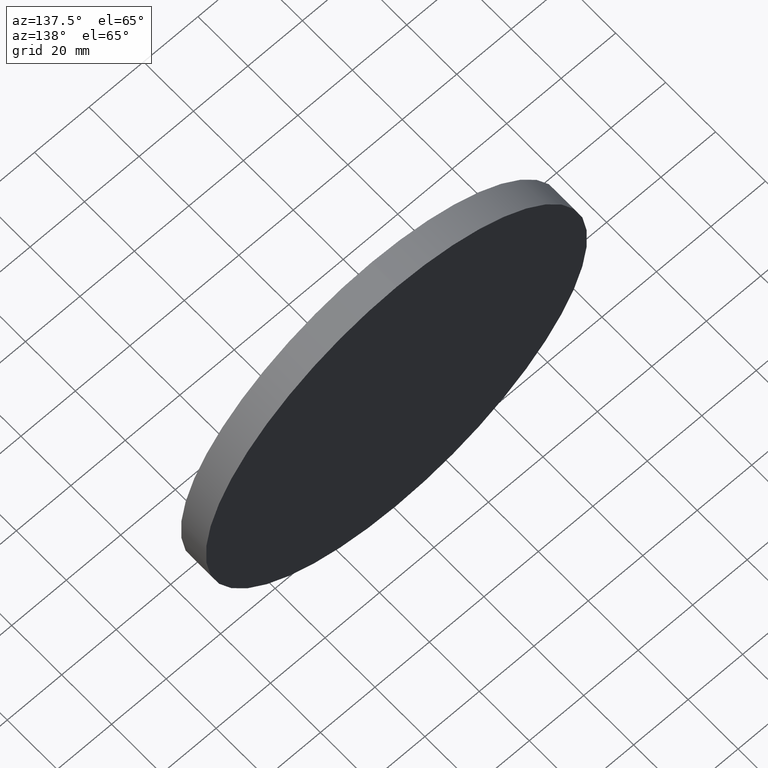
[diagram: clean part render]
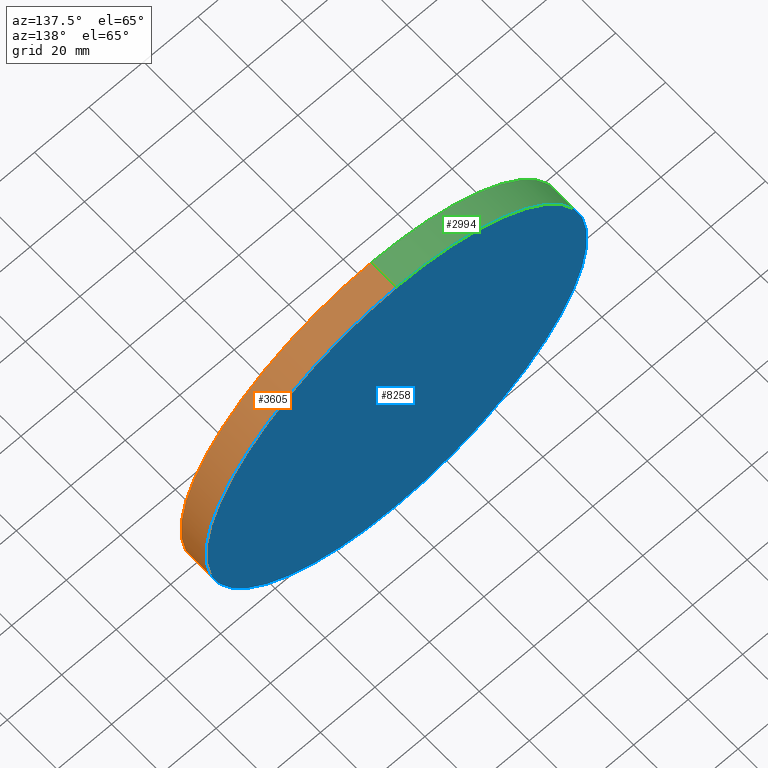
[diagram: same view with three faces highlighted in distinct colors, each labeled with its STEP entity id]
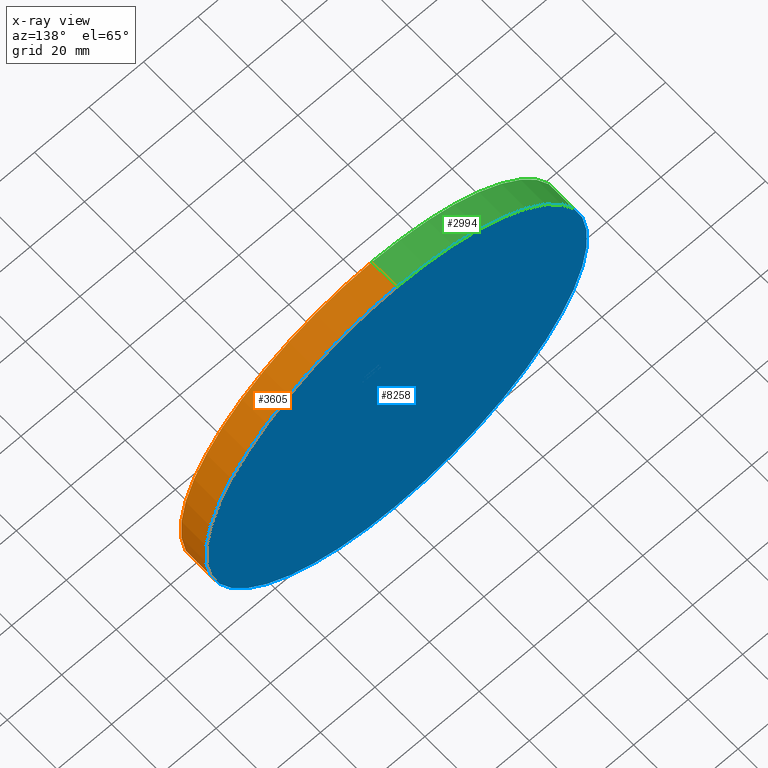
[diagram: x-ray of the same camera — body ghosted, the three highlighted faces saturated]
A machine part, auxiliary view with three faces highlighted in distinct colors.
The next image is the same camera in x-ray (body ghosted, the three faces saturated) — at least one of them is partly hidden behind the body in this view.
Their STEP definitions:

[orange] entity #3605 — the highlighted cylindrical surface (partial cylindrical patch) has radius 70 mm, axis along (-0, -1, -0).
#489 = LINE ( 'NONE', #6214, #5787 ) ;
#1496 = DIRECTION ( 'NONE',  ( -0.000000000000000000, -1.000000000000000000, -0.000000000000000000 ) ) ;
#1502 = CYLINDRICAL_SURFACE ( 'NONE', #5979, 70.00000000000001421 ) ;
#1912 = VERTEX_POINT ( 'NONE', #3319 ) ;
#2585 = EDGE_LOOP ( 'NONE', ( #5265, #9674, #5052, #11420 ) ) ;
#2790 = EDGE_CURVE ( 'NONE', #7169, #1912, #7281, .T. ) ;
#3096 = CARTESIAN_POINT ( 'NONE',  ( 0.000000000000000000, 5.000000000000000000, 0.000000000000000000 ) ) ;
#3226 = VECTOR ( 'NONE', #1496, 1000.000000000000000 ) ;
#3319 = CARTESIAN_POINT ( 'NONE',  ( 0.000000000000000000, 5.000000000000000000, -70.00000000000001421 ) ) ;
#3391 = CIRCLE ( 'NONE', #5797, 70.00000000000001421 ) ;
#3605 = ADVANCED_FACE ( 'NONE', ( #4689 ), #1502, .T. ) ;
#4070 = DIRECTION ( 'NONE',  ( 0.000000000000000000, 1.000000000000000000, 0.000000000000000000 ) ) ;
#4129 = EDGE_CURVE ( 'NONE', #1912, #7188, #489, .T. ) ;
#4146 = DIRECTION ( 'NONE',  ( 0.000000000000000000, 0.000000000000000000, 1.000000000000000000 ) ) ;
#4190 = DIRECTION ( 'NONE',  ( 0.000000000000000000, 1.000000000000000000, 0.000000000000000000 ) ) ;
#4287 = EDGE_CURVE ( 'NONE', #7169, #10754, #9866, .T. ) ;
#4404 = EDGE_CURVE ( 'NONE', #10754, #7188, #3391, .T. ) ;
#4689 = FACE_OUTER_BOUND ( 'NONE', #2585, .T. ) ;
#5001 = CARTESIAN_POINT ( 'NONE',  ( 0.000000000000000000, -5.000000000000000000, 0.000000000000000000 ) ) ;
#5052 = ORIENTED_EDGE ( 'NONE', *, *, #4404, .T. ) ;
#5265 = ORIENTED_EDGE ( 'NONE', *, *, #2790, .F. ) ;
#5787 = VECTOR ( 'NONE', #8529, 1000.000000000000000 ) ;
#5797 = AXIS2_PLACEMENT_3D ( 'NONE', #5001, #4070, #8277 ) ;
#5979 = AXIS2_PLACEMENT_3D ( 'NONE', #10489, #13672, #6471 ) ;
#6214 = CARTESIAN_POINT ( 'NONE',  ( 0.000000000000000000, 5.000000000000000000, -70.00000000000001421 ) ) ;
#6471 = DIRECTION ( 'NONE',  ( 0.000000000000000000, 0.000000000000000000, -1.000000000000000000 ) ) ;
#7169 = VERTEX_POINT ( 'NONE', #10726 ) ;
#7188 = VERTEX_POINT ( 'NONE', #9730 ) ;
#7281 = CIRCLE ( 'NONE', #12991, 70.00000000000001421 ) ;
#8277 = DIRECTION ( 'NONE',  ( 0.000000000000000000, 0.000000000000000000, 1.000000000000000000 ) ) ;
#8529 = DIRECTION ( 'NONE',  ( -0.000000000000000000, -1.000000000000000000, -0.000000000000000000 ) ) ;
#8838 = CARTESIAN_POINT ( 'NONE',  ( 8.572527594031474570E-15, 5.000000000000000000, 70.00000000000001421 ) ) ;
#9674 = ORIENTED_EDGE ( 'NONE', *, *, #4287, .T. ) ;
#9730 = CARTESIAN_POINT ( 'NONE',  ( 0.000000000000000000, -5.000000000000000000, -70.00000000000001421 ) ) ;
#9866 = LINE ( 'NONE', #8838, #3226 ) ;
#10181 = CARTESIAN_POINT ( 'NONE',  ( 8.572527594031474570E-15, -5.000000000000000000, 70.00000000000001421 ) ) ;
#10489 = CARTESIAN_POINT ( 'NONE',  ( 0.000000000000000000, 5.000000000000000000, 0.000000000000000000 ) ) ;
#10726 = CARTESIAN_POINT ( 'NONE',  ( 8.572527594031474570E-15, 5.000000000000000000, 70.00000000000001421 ) ) ;
#10754 = VERTEX_POINT ( 'NONE', #10181 ) ;
#11420 = ORIENTED_EDGE ( 'NONE', *, *, #4129, .F. ) ;
#12991 = AXIS2_PLACEMENT_3D ( 'NONE', #3096, #4190, #4146 ) ;
#13672 = DIRECTION ( 'NONE',  ( -0.000000000000000000, -1.000000000000000000, -0.000000000000000000 ) ) ;

[blue] entity #8258 — the highlighted planar face has unit normal (0, 1, 0).
#1912 = VERTEX_POINT ( 'NONE', #3319 ) ;
#2137 = ORIENTED_EDGE ( 'NONE', *, *, #2790, .T. ) ;
#2608 = DIRECTION ( 'NONE',  ( 0.000000000000000000, 1.000000000000000000, 0.000000000000000000 ) ) ;
#2790 = EDGE_CURVE ( 'NONE', #7169, #1912, #7281, .T. ) ;
#3096 = CARTESIAN_POINT ( 'NONE',  ( 0.000000000000000000, 5.000000000000000000, 0.000000000000000000 ) ) ;
#3319 = CARTESIAN_POINT ( 'NONE',  ( 0.000000000000000000, 5.000000000000000000, -70.00000000000001421 ) ) ;
#3631 = CARTESIAN_POINT ( 'NONE',  ( 0.000000000000000000, 5.000000000000000000, 0.000000000000000000 ) ) ;
#3822 = CIRCLE ( 'NONE', #10367, 70.00000000000001421 ) ;
#4045 = ORIENTED_EDGE ( 'NONE', *, *, #9184, .T. ) ;
#4146 = DIRECTION ( 'NONE',  ( 0.000000000000000000, 0.000000000000000000, 1.000000000000000000 ) ) ;
#4190 = DIRECTION ( 'NONE',  ( 0.000000000000000000, 1.000000000000000000, 0.000000000000000000 ) ) ;
#4961 = AXIS2_PLACEMENT_3D ( 'NONE', #3631, #2608, #12250 ) ;
#5913 = EDGE_LOOP ( 'NONE', ( #4045, #2137 ) ) ;
#7169 = VERTEX_POINT ( 'NONE', #10726 ) ;
#7281 = CIRCLE ( 'NONE', #12991, 70.00000000000001421 ) ;
#7338 = FACE_OUTER_BOUND ( 'NONE', #5913, .T. ) ;
#8258 = ADVANCED_FACE ( 'NONE', ( #7338 ), #13237, .T. ) ;
#8487 = DIRECTION ( 'NONE',  ( 0.000000000000000000, 0.000000000000000000, 1.000000000000000000 ) ) ;
#9184 = EDGE_CURVE ( 'NONE', #1912, #7169, #3822, .T. ) ;
#10367 = AXIS2_PLACEMENT_3D ( 'NONE', #10638, #13613, #8487 ) ;
#10638 = CARTESIAN_POINT ( 'NONE',  ( 0.000000000000000000, 5.000000000000000000, 0.000000000000000000 ) ) ;
#10726 = CARTESIAN_POINT ( 'NONE',  ( 8.572527594031474570E-15, 5.000000000000000000, 70.00000000000001421 ) ) ;
#12250 = DIRECTION ( 'NONE',  ( 0.000000000000000000, -0.000000000000000000, 1.000000000000000000 ) ) ;
#12991 = AXIS2_PLACEMENT_3D ( 'NONE', #3096, #4190, #4146 ) ;
#13237 = PLANE ( 'NONE',  #4961 ) ;
#13613 = DIRECTION ( 'NONE',  ( 0.000000000000000000, 1.000000000000000000, 0.000000000000000000 ) ) ;

[green] entity #2994 — the highlighted cylindrical surface (partial cylindrical patch) has radius 70 mm, axis along (-0, -1, -0).
#489 = LINE ( 'NONE', #6214, #5787 ) ;
#1465 = CARTESIAN_POINT ( 'NONE',  ( 0.000000000000000000, 5.000000000000000000, 0.000000000000000000 ) ) ;
#1496 = DIRECTION ( 'NONE',  ( -0.000000000000000000, -1.000000000000000000, -0.000000000000000000 ) ) ;
#1912 = VERTEX_POINT ( 'NONE', #3319 ) ;
#2554 = ORIENTED_EDGE ( 'NONE', *, *, #9184, .F. ) ;
#2994 = ADVANCED_FACE ( 'NONE', ( #3458 ), #11079, .T. ) ;
#3226 = VECTOR ( 'NONE', #1496, 1000.000000000000000 ) ;
#3319 = CARTESIAN_POINT ( 'NONE',  ( 0.000000000000000000, 5.000000000000000000, -70.00000000000001421 ) ) ;
#3458 = FACE_OUTER_BOUND ( 'NONE', #6731, .T. ) ;
#3822 = CIRCLE ( 'NONE', #10367, 70.00000000000001421 ) ;
#4129 = EDGE_CURVE ( 'NONE', #1912, #7188, #489, .T. ) ;
#4287 = EDGE_CURVE ( 'NONE', #7169, #10754, #9866, .T. ) ;
#5787 = VECTOR ( 'NONE', #8529, 1000.000000000000000 ) ;
#6058 = ORIENTED_EDGE ( 'NONE', *, *, #11960, .T. ) ;
#6214 = CARTESIAN_POINT ( 'NONE',  ( 0.000000000000000000, 5.000000000000000000, -70.00000000000001421 ) ) ;
#6731 = EDGE_LOOP ( 'NONE', ( #12319, #2554, #13150, #6058 ) ) ;
#7169 = VERTEX_POINT ( 'NONE', #10726 ) ;
#7188 = VERTEX_POINT ( 'NONE', #9730 ) ;
#7770 = DIRECTION ( 'NONE',  ( 0.000000000000000000, 0.000000000000000000, -1.000000000000000000 ) ) ;
#7826 = AXIS2_PLACEMENT_3D ( 'NONE', #9118, #11232, #13370 ) ;
#8487 = DIRECTION ( 'NONE',  ( 0.000000000000000000, 0.000000000000000000, 1.000000000000000000 ) ) ;
#8529 = DIRECTION ( 'NONE',  ( -0.000000000000000000, -1.000000000000000000, -0.000000000000000000 ) ) ;
#8838 = CARTESIAN_POINT ( 'NONE',  ( 8.572527594031474570E-15, 5.000000000000000000, 70.00000000000001421 ) ) ;
#8853 = DIRECTION ( 'NONE',  ( -0.000000000000000000, -1.000000000000000000, -0.000000000000000000 ) ) ;
#9118 = CARTESIAN_POINT ( 'NONE',  ( 0.000000000000000000, -5.000000000000000000, 0.000000000000000000 ) ) ;
#9184 = EDGE_CURVE ( 'NONE', #1912, #7169, #3822, .T. ) ;
#9730 = CARTESIAN_POINT ( 'NONE',  ( 0.000000000000000000, -5.000000000000000000, -70.00000000000001421 ) ) ;
#9866 = LINE ( 'NONE', #8838, #3226 ) ;
#10181 = CARTESIAN_POINT ( 'NONE',  ( 8.572527594031474570E-15, -5.000000000000000000, 70.00000000000001421 ) ) ;
#10246 = CIRCLE ( 'NONE', #7826, 70.00000000000001421 ) ;
#10367 = AXIS2_PLACEMENT_3D ( 'NONE', #10638, #13613, #8487 ) ;
#10638 = CARTESIAN_POINT ( 'NONE',  ( 0.000000000000000000, 5.000000000000000000, 0.000000000000000000 ) ) ;
#10726 = CARTESIAN_POINT ( 'NONE',  ( 8.572527594031474570E-15, 5.000000000000000000, 70.00000000000001421 ) ) ;
#10754 = VERTEX_POINT ( 'NONE', #10181 ) ;
#11079 = CYLINDRICAL_SURFACE ( 'NONE', #12384, 70.00000000000001421 ) ;
#11232 = DIRECTION ( 'NONE',  ( 0.000000000000000000, 1.000000000000000000, 0.000000000000000000 ) ) ;
#11960 = EDGE_CURVE ( 'NONE', #7188, #10754, #10246, .T. ) ;
#12319 = ORIENTED_EDGE ( 'NONE', *, *, #4287, .F. ) ;
#12384 = AXIS2_PLACEMENT_3D ( 'NONE', #1465, #8853, #7770 ) ;
#13150 = ORIENTED_EDGE ( 'NONE', *, *, #4129, .T. ) ;
#13370 = DIRECTION ( 'NONE',  ( 0.000000000000000000, 0.000000000000000000, 1.000000000000000000 ) ) ;
#13613 = DIRECTION ( 'NONE',  ( 0.000000000000000000, 1.000000000000000000, 0.000000000000000000 ) ) ;